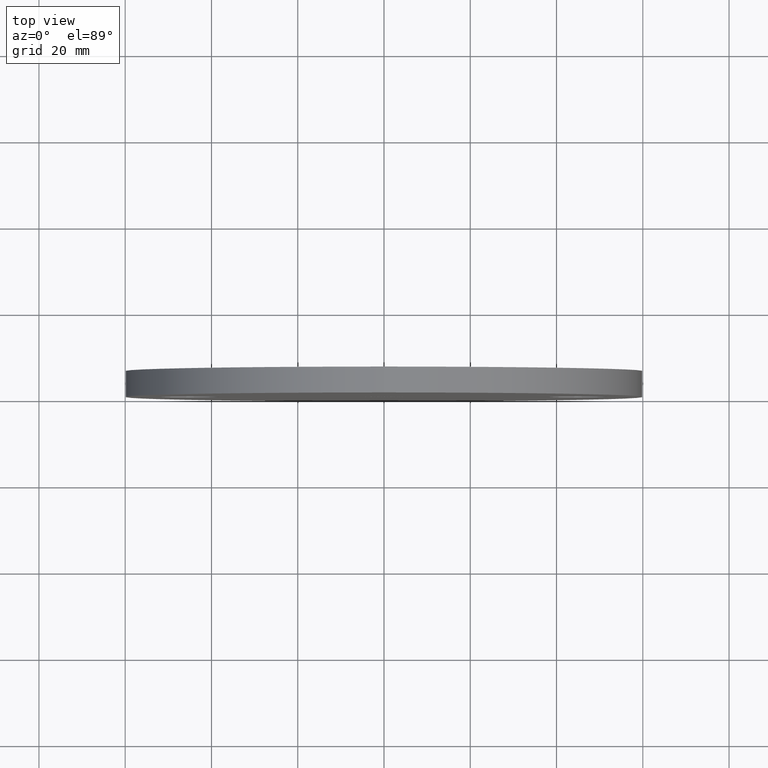
[diagram: clean part render]
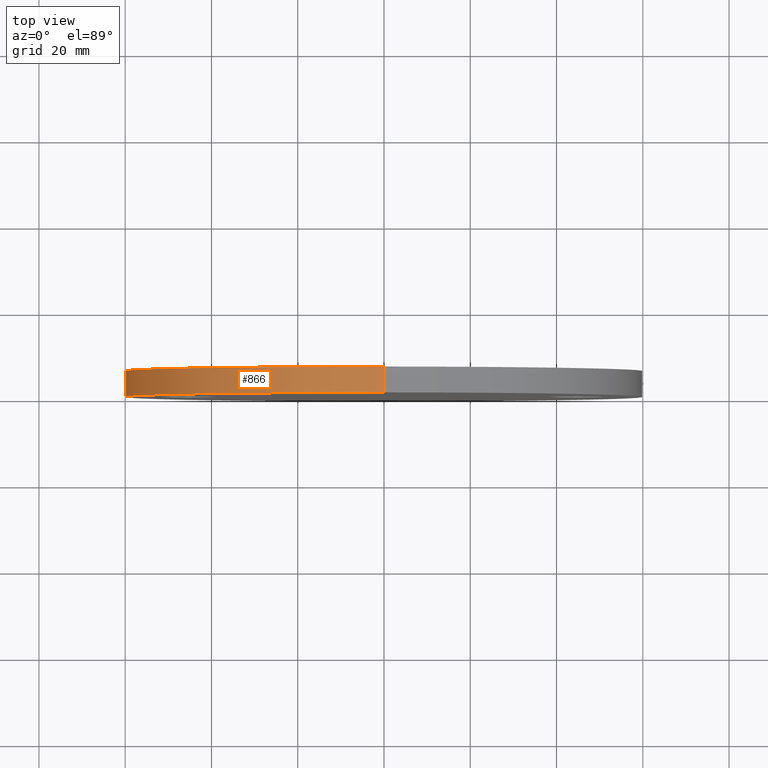
[diagram: same view with one face highlighted and labeled with its STEP entity id]
A machine part, top view. The second image highlights one B-rep face of the part: STEP entity #866.
In plain terms, the highlighted cylindrical surface (partial cylindrical patch) has radius 60 mm, axis along (-0, -1, -0).
Its self-contained STEP definition (entity closure, byte-faithful):
#866 = ADVANCED_FACE ( 'NONE', ( #2215 ), #3032, .T. ) ;
#2215 = FACE_OUTER_BOUND ( 'NONE', #4324, .T. ) ;
#2302 = CARTESIAN_POINT ( 'NONE',  ( 0.000000000000000000, 6.000000000000000000, -60.00000000000000000 ) ) ;
#3032 = CYLINDRICAL_SURFACE ( 'NONE', #12085, 60.00000000000000000 ) ;
#3123 = LINE ( 'NONE', #2302, #10992 ) ;
#3307 = VERTEX_POINT ( 'NONE', #6908 ) ;
#3876 = DIRECTION ( 'NONE',  ( -0.000000000000000000, -1.000000000000000000, -0.000000000000000000 ) ) ;
#4142 = AXIS2_PLACEMENT_3D ( 'NONE', #8795, #10771, #11738 ) ;
#4324 = EDGE_LOOP ( 'NONE', ( #9532, #12228, #7344, #11444 ) ) ;
#4778 = CARTESIAN_POINT ( 'NONE',  ( 0.000000000000000000, 6.000000000000000000, 0.000000000000000000 ) ) ;
#4958 = CARTESIAN_POINT ( 'NONE',  ( 7.347880794884118356E-15, 6.000000000000000000, 60.00000000000000000 ) ) ;
#5020 = CARTESIAN_POINT ( 'NONE',  ( 7.347880794884118356E-15, 6.000000000000000000, 60.00000000000000000 ) ) ;
#5038 = EDGE_CURVE ( 'NONE', #10392, #11563, #5259, .T. ) ;
#5259 = CIRCLE ( 'NONE', #7969, 60.00000000000000000 ) ;
#6122 = VERTEX_POINT ( 'NONE', #9836 ) ;
#6908 = CARTESIAN_POINT ( 'NONE',  ( 7.347880794884118356E-15, 0.000000000000000000, 60.00000000000000000 ) ) ;
#6966 = DIRECTION ( 'NONE',  ( 0.000000000000000000, 0.000000000000000000, -1.000000000000000000 ) ) ;
#7139 = VECTOR ( 'NONE', #10988, 1000.000000000000000 ) ;
#7344 = ORIENTED_EDGE ( 'NONE', *, *, #9894, .T. ) ;
#7535 = CARTESIAN_POINT ( 'NONE',  ( 0.000000000000000000, 6.000000000000000000, -60.00000000000000000 ) ) ;
#7969 = AXIS2_PLACEMENT_3D ( 'NONE', #10330, #10418, #12250 ) ;
#8795 = CARTESIAN_POINT ( 'NONE',  ( 0.000000000000000000, 0.000000000000000000, 0.000000000000000000 ) ) ;
#9522 = DIRECTION ( 'NONE',  ( -0.000000000000000000, -1.000000000000000000, -0.000000000000000000 ) ) ;
#9528 = CIRCLE ( 'NONE', #4142, 60.00000000000000000 ) ;
#9532 = ORIENTED_EDGE ( 'NONE', *, *, #9816, .F. ) ;
#9816 = EDGE_CURVE ( 'NONE', #11563, #3307, #10215, .T. ) ;
#9836 = CARTESIAN_POINT ( 'NONE',  ( 0.000000000000000000, 0.000000000000000000, -60.00000000000000000 ) ) ;
#9894 = EDGE_CURVE ( 'NONE', #10392, #6122, #3123, .T. ) ;
#10215 = LINE ( 'NONE', #4958, #7139 ) ;
#10330 = CARTESIAN_POINT ( 'NONE',  ( 0.000000000000000000, 6.000000000000000000, 0.000000000000000000 ) ) ;
#10392 = VERTEX_POINT ( 'NONE', #7535 ) ;
#10418 = DIRECTION ( 'NONE',  ( 0.000000000000000000, 1.000000000000000000, 0.000000000000000000 ) ) ;
#10771 = DIRECTION ( 'NONE',  ( 0.000000000000000000, 1.000000000000000000, 0.000000000000000000 ) ) ;
#10988 = DIRECTION ( 'NONE',  ( -0.000000000000000000, -1.000000000000000000, -0.000000000000000000 ) ) ;
#10992 = VECTOR ( 'NONE', #9522, 1000.000000000000000 ) ;
#11444 = ORIENTED_EDGE ( 'NONE', *, *, #12345, .T. ) ;
#11563 = VERTEX_POINT ( 'NONE', #5020 ) ;
#11738 = DIRECTION ( 'NONE',  ( 0.000000000000000000, 0.000000000000000000, 1.000000000000000000 ) ) ;
#12085 = AXIS2_PLACEMENT_3D ( 'NONE', #4778, #3876, #6966 ) ;
#12228 = ORIENTED_EDGE ( 'NONE', *, *, #5038, .F. ) ;
#12250 = DIRECTION ( 'NONE',  ( 0.000000000000000000, 0.000000000000000000, 1.000000000000000000 ) ) ;
#12345 = EDGE_CURVE ( 'NONE', #6122, #3307, #9528, .T. ) ;